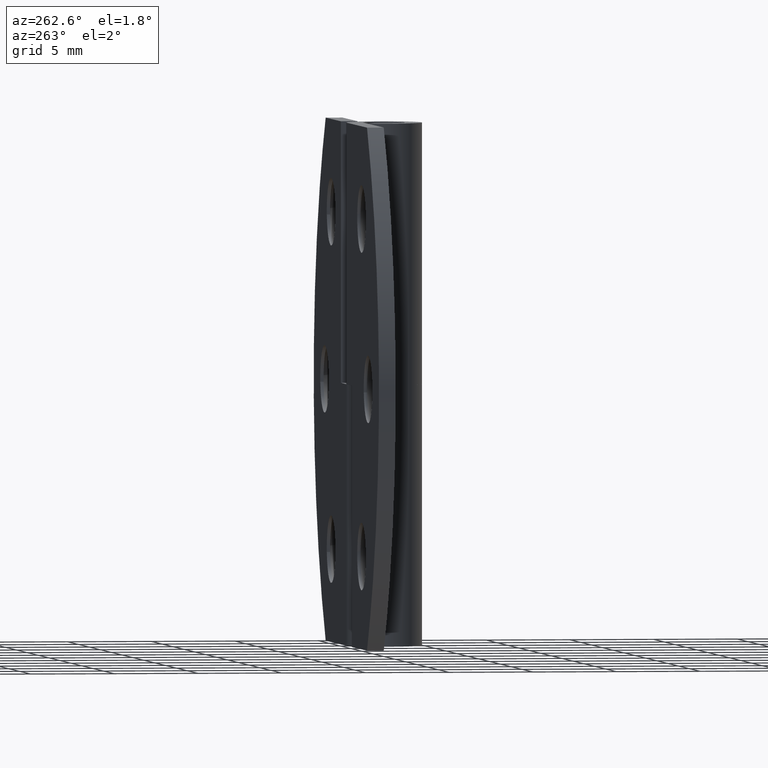
[diagram: clean part render]
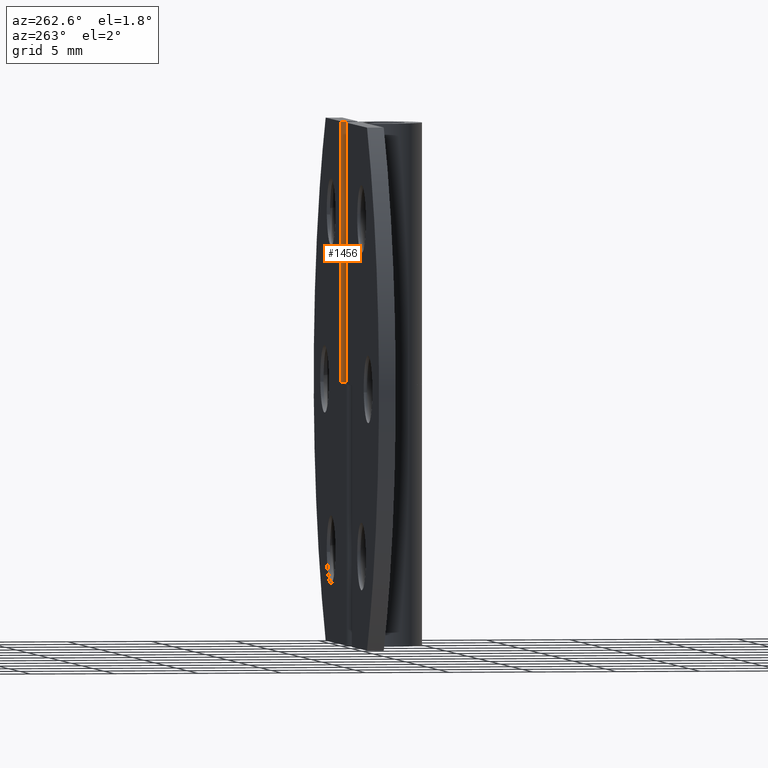
[diagram: same view with one face highlighted and labeled with its STEP entity id]
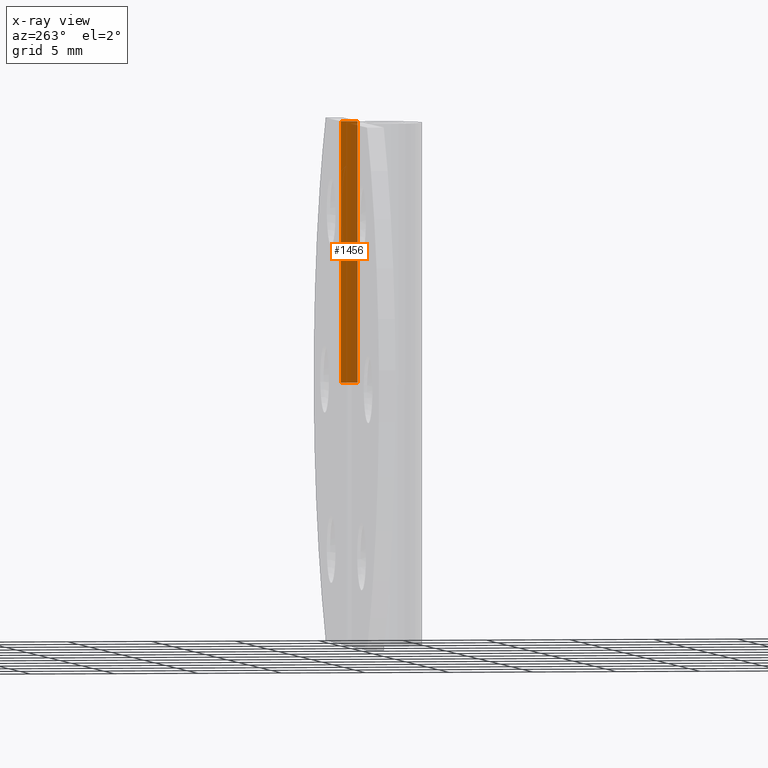
[diagram: x-ray of the same camera — body ghosted, the highlighted face saturated]
A machine part, auxiliary view. The second image highlights one B-rep face of the part: STEP entity #1456.
The next image is the same camera in x-ray: the body ghosted, the highlighted face saturated — about 39% of this face is hidden behind the body in this view.
In plain terms, the highlighted face is a freeform B-spline surface patch.
Its self-contained STEP definition (entity closure, byte-faithful):
#1421=CARTESIAN_POINT('',(2.500000000000200,1.200050001938166,31.774217006866412));
#1422=CARTESIAN_POINT('',(2.500000000000200,1.200050001938166,14.725774993133490));
#1423=CARTESIAN_POINT('',(2.500000000000200,2.299950024883871,31.774217006866412));
#1424=CARTESIAN_POINT('',(2.500000000000200,2.299950024883871,14.725774993133490));
#1425=B_SPLINE_SURFACE_WITH_KNOTS('',1,1,((#1421,#1423),(#1422,#1424)),.UNSPECIFIED.,.F.,.F.,.U.,(2,2),(2,2),(0.0,17.048442013732920),(0.041708334948495,0.958291687403247),.UNSPECIFIED.);
#1426=CARTESIAN_POINT('',(2.500000000000200,1.249999999999972,15.500000000000000));
#1427=VERTEX_POINT('',#1426);
#1428=CARTESIAN_POINT('',(2.500000000000200,1.250000000000000,30.999991999999899));
#1429=VERTEX_POINT('',#1428);
#1430=CARTESIAN_POINT('',(2.500000000000200,1.249999999999972,15.500000000000000));
#1431=CARTESIAN_POINT('',(2.500000000000200,1.250000000000000,30.999991999999899));
#1432=QUASI_UNIFORM_CURVE('',1,(#1430,#1431),.UNSPECIFIED.,.F.,.U.);
#1433=EDGE_CURVE('',#1427,#1429,#1432,.T.);
#1434=ORIENTED_EDGE('',*,*,#1433,.T.);
#1435=CARTESIAN_POINT('',(2.500000000000200,2.249999999999975,30.999991999999899));
#1436=VERTEX_POINT('',#1435);
#1437=CARTESIAN_POINT('',(2.500000000000200,1.250000000000000,30.999991999999899));
#1438=CARTESIAN_POINT('',(2.500000000000200,2.249999999999975,30.999991999999899));
#1439=QUASI_UNIFORM_CURVE('',1,(#1437,#1438),.UNSPECIFIED.,.F.,.U.);
#1440=EDGE_CURVE('',#1429,#1436,#1439,.T.);
#1441=ORIENTED_EDGE('',*,*,#1440,.T.);
#1442=CARTESIAN_POINT('',(2.500000000000200,2.249999999999975,15.500000000000000));
#1443=VERTEX_POINT('',#1442);
#1444=CARTESIAN_POINT('',(2.500000000000200,2.249999999999975,30.999991999999899));
#1445=CARTESIAN_POINT('',(2.500000000000200,2.249999999999975,15.500000000000000));
#1446=QUASI_UNIFORM_CURVE('',1,(#1444,#1445),.UNSPECIFIED.,.F.,.U.);
#1447=EDGE_CURVE('',#1436,#1443,#1446,.T.);
#1448=ORIENTED_EDGE('',*,*,#1447,.T.);
#1449=CARTESIAN_POINT('',(2.500000000000200,1.249999999999972,15.500000000000000));
#1450=CARTESIAN_POINT('',(2.500000000000200,2.249999999999975,15.500000000000000));
#1451=QUASI_UNIFORM_CURVE('',1,(#1449,#1450),.UNSPECIFIED.,.F.,.U.);
#1452=EDGE_CURVE('',#1427,#1443,#1451,.T.);
#1453=ORIENTED_EDGE('',*,*,#1452,.F.);
#1454=EDGE_LOOP('',(#1434,#1441,#1448,#1453));
#1455=FACE_OUTER_BOUND('',#1454,.T.);
#1456=ADVANCED_FACE('',(#1455),#1425,.F.);